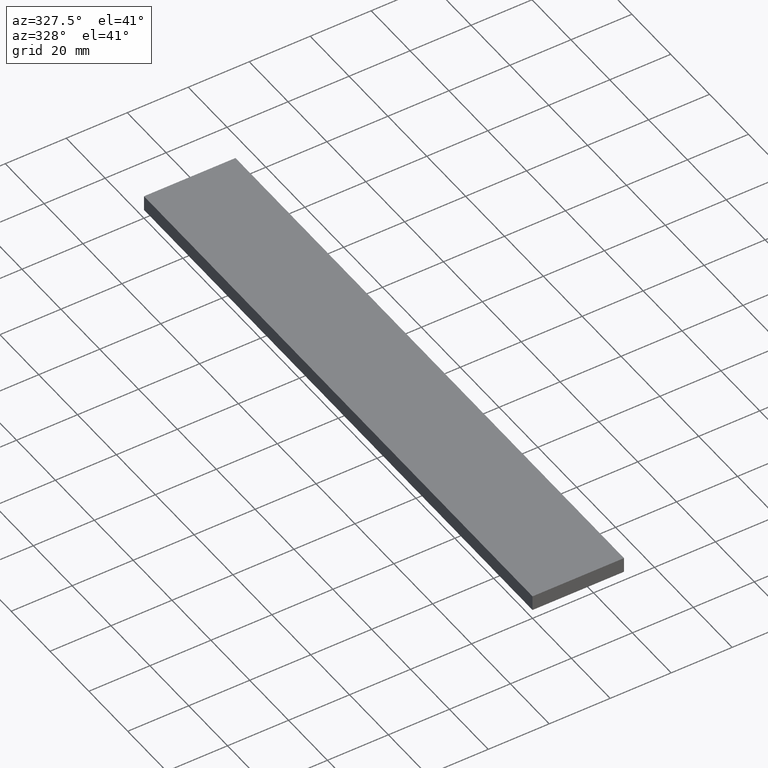
[diagram: clean part render]
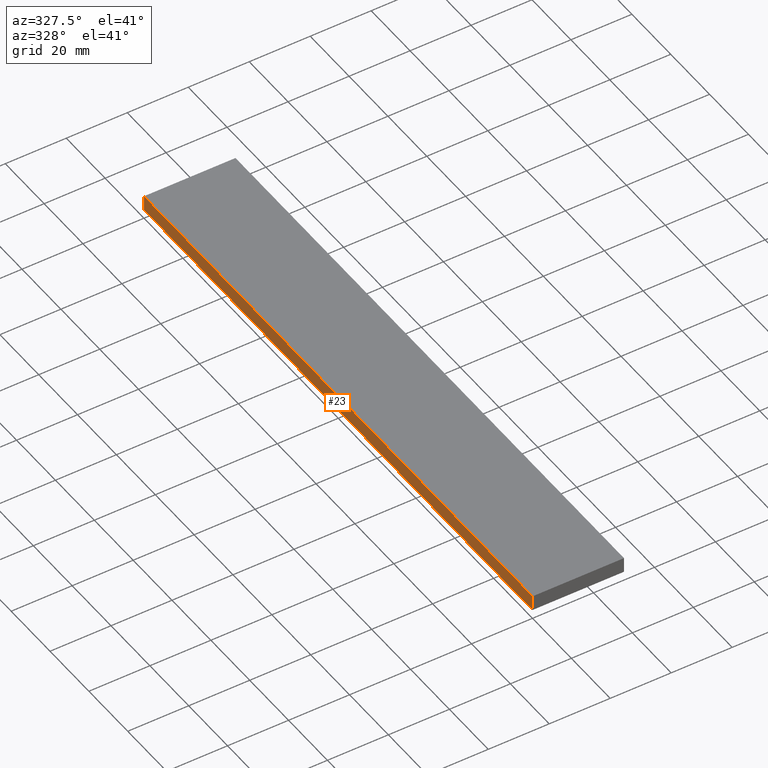
[diagram: same view with one face highlighted and labeled with its STEP entity id]
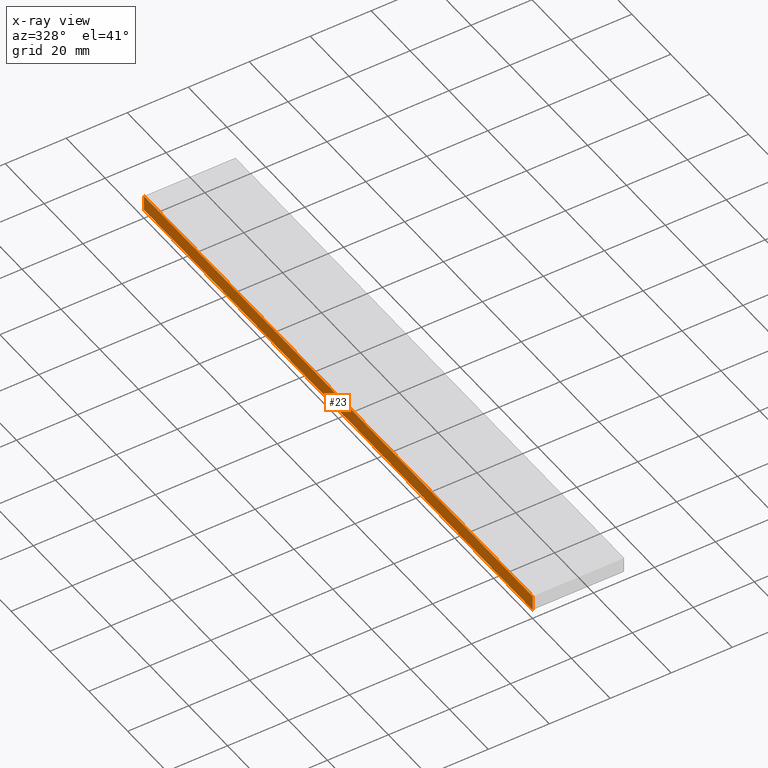
[diagram: x-ray of the same camera — body ghosted, the highlighted face saturated]
A machine part, auxiliary view. The second image highlights one B-rep face of the part: STEP entity #23.
The next image is the same camera in x-ray: the body ghosted, the highlighted face saturated — about 0% of this face is hidden behind the body in this view.
In plain terms, the highlighted planar face has unit normal (1, 0, 0).
Its self-contained STEP definition (entity closure, byte-faithful):
#19 = LINE ( 'NONE', #206, #138 ) ;
#23 = ADVANCED_FACE ( 'NONE', ( #98 ), #204, .F. ) ;
#38 = ORIENTED_EDGE ( 'NONE', *, *, #155, .T. ) ;
#39 = AXIS2_PLACEMENT_3D ( 'NONE', #75, #151, #191 ) ;
#43 = CARTESIAN_POINT ( 'NONE',  ( 0.0000000000000000000, 200.0000000000000000, 5.000000000000000000 ) ) ;
#61 = ORIENTED_EDGE ( 'NONE', *, *, #116, .T. ) ;
#73 = ORIENTED_EDGE ( 'NONE', *, *, #99, .F. ) ;
#75 = CARTESIAN_POINT ( 'NONE',  ( 0.0000000000000000000, 1000.000000000000000, 0.0000000000000000000 ) ) ;
#86 = VERTEX_POINT ( 'NONE', #126 ) ;
#87 = DIRECTION ( 'NONE',  ( 0.0000000000000000000, -1.000000000000000000, 0.0000000000000000000 ) ) ;
#90 = DIRECTION ( 'NONE',  ( 0.0000000000000000000, 0.0000000000000000000, 1.000000000000000000 ) ) ;
#95 = ORIENTED_EDGE ( 'NONE', *, *, #128, .F. ) ;
#98 = FACE_OUTER_BOUND ( 'NONE', #172, .T. ) ;
#99 = EDGE_CURVE ( 'NONE', #86, #231, #19, .T. ) ;
#108 = VECTOR ( 'NONE', #90, 1000.000000000000000 ) ;
#109 = LINE ( 'NONE', #189, #108 ) ;
#112 = VERTEX_POINT ( 'NONE', #131 ) ;
#116 = EDGE_CURVE ( 'NONE', #112, #175, #109, .T. ) ;
#125 = CARTESIAN_POINT ( 'NONE',  ( 0.0000000000000000000, 1000.000000000000000, 5.000000000000000000 ) ) ;
#126 = CARTESIAN_POINT ( 'NONE',  ( 0.0000000000000000000, 200.0000000000000000, 0.0000000000000000000 ) ) ;
#128 = EDGE_CURVE ( 'NONE', #231, #175, #186, .T. ) ;
#131 = CARTESIAN_POINT ( 'NONE',  ( 0.0000000000000000000, 0.0000000000000000000, 0.0000000000000000000 ) ) ;
#138 = VECTOR ( 'NONE', #163, 1000.000000000000000 ) ;
#141 = DIRECTION ( 'NONE',  ( 0.0000000000000000000, -1.000000000000000000, 0.0000000000000000000 ) ) ;
#142 = VECTOR ( 'NONE', #87, 1000.000000000000000 ) ;
#151 = DIRECTION ( 'NONE',  ( 1.000000000000000000, 0.0000000000000000000, 0.0000000000000000000 ) ) ;
#155 = EDGE_CURVE ( 'NONE', #86, #112, #193, .T. ) ;
#163 = DIRECTION ( 'NONE',  ( 0.0000000000000000000, 0.0000000000000000000, 1.000000000000000000 ) ) ;
#172 = EDGE_LOOP ( 'NONE', ( #61, #95, #73, #38 ) ) ;
#175 = VERTEX_POINT ( 'NONE', #235 ) ;
#180 = VECTOR ( 'NONE', #141, 1000.000000000000000 ) ;
#186 = LINE ( 'NONE', #125, #180 ) ;
#189 = CARTESIAN_POINT ( 'NONE',  ( 0.0000000000000000000, 0.0000000000000000000, 0.0000000000000000000 ) ) ;
#191 = DIRECTION ( 'NONE',  ( 0.0000000000000000000, 0.0000000000000000000, -1.000000000000000000 ) ) ;
#193 = LINE ( 'NONE', #223, #142 ) ;
#204 = PLANE ( 'NONE',  #39 ) ;
#206 = CARTESIAN_POINT ( 'NONE',  ( 0.0000000000000000000, 200.0000000000000000, 0.0000000000000000000 ) ) ;
#223 = CARTESIAN_POINT ( 'NONE',  ( 0.0000000000000000000, 1000.000000000000000, 0.0000000000000000000 ) ) ;
#231 = VERTEX_POINT ( 'NONE', #43 ) ;
#235 = CARTESIAN_POINT ( 'NONE',  ( 0.0000000000000000000, 0.0000000000000000000, 5.000000000000000000 ) ) ;